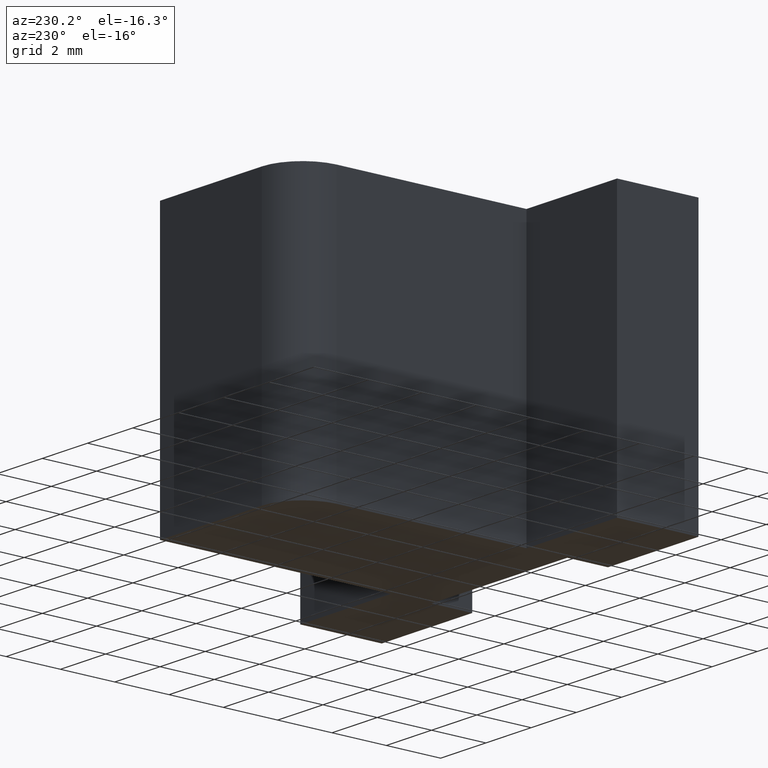
[diagram: clean part render]
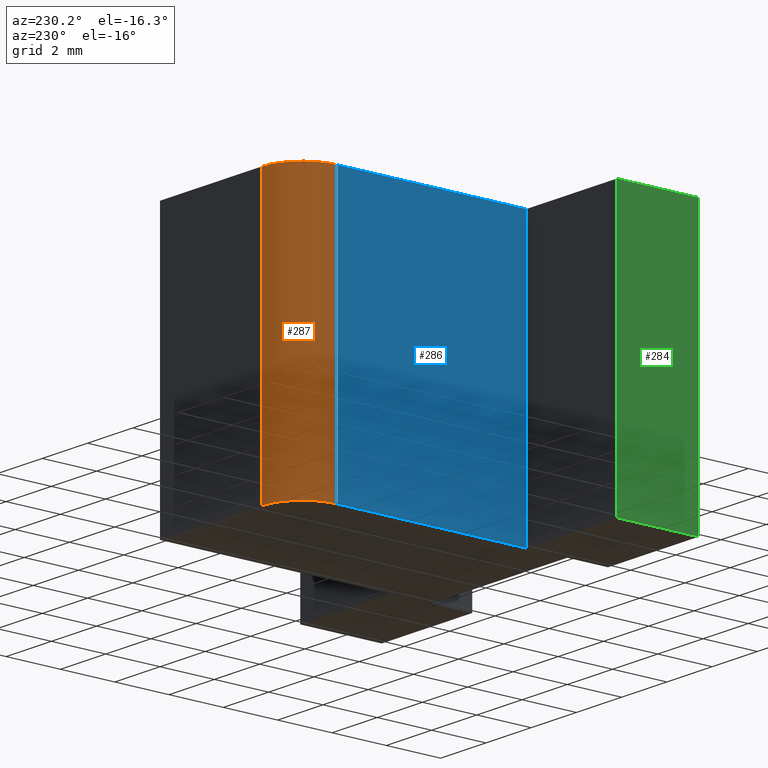
[diagram: same view with three faces highlighted in distinct colors, each labeled with its STEP entity id]
A machine part, auxiliary view with three faces highlighted in distinct colors.
Their STEP definitions:

[orange] entity #287 — the highlighted cylindrical surface (partial cylindrical patch) has radius 1.5 mm, axis along (0, 0, 1).
#15=CYLINDRICAL_SURFACE('',#323,1.5);
#24=FACE_OUTER_BOUND('',#39,.T.);
#39=EDGE_LOOP('',(#228,#229,#230,#231));
#46=CIRCLE('',#315,1.5);
#47=CIRCLE('',#324,1.5);
#74=LINE('',#461,#111);
#75=LINE('',#465,#112);
#111=VECTOR('',#377,10.);
#112=VECTOR('',#382,10.);
#131=VERTEX_POINT('',#423);
#132=VERTEX_POINT('',#425);
#142=VERTEX_POINT('',#459);
#143=VERTEX_POINT('',#463);
#157=EDGE_CURVE('',#132,#131,#46,.T.);
#175=EDGE_CURVE('',#142,#131,#74,.T.);
#176=EDGE_CURVE('',#142,#143,#47,.T.);
#177=EDGE_CURVE('',#143,#132,#75,.T.);
#228=ORIENTED_EDGE('',*,*,#176,.T.);
#229=ORIENTED_EDGE('',*,*,#177,.T.);
#230=ORIENTED_EDGE('',*,*,#157,.T.);
#231=ORIENTED_EDGE('',*,*,#175,.F.);
#287=ADVANCED_FACE('',(#24),#15,.T.);
#315=AXIS2_PLACEMENT_3D('',#426,#344,#345);
#323=AXIS2_PLACEMENT_3D('',#462,#378,#379);
#324=AXIS2_PLACEMENT_3D('',#464,#380,#381);
#344=DIRECTION('center_axis',(0.,0.,1.));
#345=DIRECTION('ref_axis',(-9.25185853854298E-16,-1.,0.));
#377=DIRECTION('',(0.,0.,-1.));
#378=DIRECTION('center_axis',(0.,0.,1.));
#379=DIRECTION('ref_axis',(-9.25185853854298E-16,-1.,0.));
#380=DIRECTION('center_axis',(0.,0.,-1.));
#381=DIRECTION('ref_axis',(-9.25185853854298E-16,-1.,0.));
#382=DIRECTION('',(0.,0.,-1.));
#423=CARTESIAN_POINT('',(-3.,10.,-5.));
#425=CARTESIAN_POINT('',(-1.5,11.5,-5.));
#426=CARTESIAN_POINT('Origin',(-1.5,10.,-5.));
#459=CARTESIAN_POINT('',(-3.,10.,5.));
#461=CARTESIAN_POINT('',(-3.,10.,0.));
#462=CARTESIAN_POINT('Origin',(-1.5,10.,0.));
#463=CARTESIAN_POINT('',(-1.5,11.5,5.));
#464=CARTESIAN_POINT('Origin',(-1.5,10.,5.));
#465=CARTESIAN_POINT('',(-1.5,11.5,0.));

[blue] entity #286 — the highlighted planar face has unit normal (-1, 0, 0).
#23=FACE_OUTER_BOUND('',#38,.T.);
#38=EDGE_LOOP('',(#224,#225,#226,#227));
#56=LINE('',#424,#93);
#72=LINE('',#457,#109);
#73=LINE('',#460,#110);
#74=LINE('',#461,#111);
#93=VECTOR('',#343,10.);
#109=VECTOR('',#373,10.);
#110=VECTOR('',#376,10.);
#111=VECTOR('',#377,10.);
#130=VERTEX_POINT('',#421);
#131=VERTEX_POINT('',#423);
#141=VERTEX_POINT('',#455);
#142=VERTEX_POINT('',#459);
#156=EDGE_CURVE('',#131,#130,#56,.T.);
#173=EDGE_CURVE('',#141,#130,#72,.T.);
#174=EDGE_CURVE('',#141,#142,#73,.T.);
#175=EDGE_CURVE('',#142,#131,#74,.T.);
#224=ORIENTED_EDGE('',*,*,#174,.T.);
#225=ORIENTED_EDGE('',*,*,#175,.T.);
#226=ORIENTED_EDGE('',*,*,#156,.T.);
#227=ORIENTED_EDGE('',*,*,#173,.F.);
#272=PLANE('',#322);
#286=ADVANCED_FACE('',(#23),#272,.T.);
#322=AXIS2_PLACEMENT_3D('',#458,#374,#375);
#343=DIRECTION('',(0.,-1.,0.));
#373=DIRECTION('',(0.,0.,-1.));
#374=DIRECTION('center_axis',(-1.,0.,0.));
#375=DIRECTION('ref_axis',(0.,0.,1.));
#376=DIRECTION('',(0.,1.,0.));
#377=DIRECTION('',(0.,0.,-1.));
#421=CARTESIAN_POINT('',(-3.,3.,-5.));
#423=CARTESIAN_POINT('',(-3.,10.,-5.));
#424=CARTESIAN_POINT('',(-3.,3.,-5.));
#455=CARTESIAN_POINT('',(-3.,3.,5.));
#457=CARTESIAN_POINT('',(-3.,3.,0.));
#458=CARTESIAN_POINT('Origin',(-3.,3.,0.));
#459=CARTESIAN_POINT('',(-3.,10.,5.));
#460=CARTESIAN_POINT('',(-3.,3.,5.));
#461=CARTESIAN_POINT('',(-3.,10.,0.));

[green] entity #284 — the highlighted planar face has unit normal (-1, 0, 0).
#21=FACE_OUTER_BOUND('',#36,.T.);
#36=EDGE_LOOP('',(#216,#217,#218,#219));
#54=LINE('',#420,#91);
#68=LINE('',#449,#105);
#69=LINE('',#452,#106);
#70=LINE('',#453,#107);
#91=VECTOR('',#341,10.);
#105=VECTOR('',#365,10.);
#106=VECTOR('',#368,10.);
#107=VECTOR('',#369,10.);
#128=VERTEX_POINT('',#417);
#129=VERTEX_POINT('',#419);
#139=VERTEX_POINT('',#447);
#140=VERTEX_POINT('',#451);
#154=EDGE_CURVE('',#129,#128,#54,.T.);
#169=EDGE_CURVE('',#139,#128,#68,.T.);
#170=EDGE_CURVE('',#139,#140,#69,.T.);
#171=EDGE_CURVE('',#140,#129,#70,.T.);
#216=ORIENTED_EDGE('',*,*,#170,.T.);
#217=ORIENTED_EDGE('',*,*,#171,.T.);
#218=ORIENTED_EDGE('',*,*,#154,.T.);
#219=ORIENTED_EDGE('',*,*,#169,.F.);
#270=PLANE('',#320);
#284=ADVANCED_FACE('',(#21),#270,.T.);
#320=AXIS2_PLACEMENT_3D('',#450,#366,#367);
#341=DIRECTION('',(0.,-1.,0.));
#365=DIRECTION('',(0.,0.,-1.));
#366=DIRECTION('center_axis',(-1.,0.,0.));
#367=DIRECTION('ref_axis',(0.,0.,1.));
#368=DIRECTION('',(0.,1.,0.));
#369=DIRECTION('',(0.,0.,-1.));
#417=CARTESIAN_POINT('',(-7.,0.,-5.));
#419=CARTESIAN_POINT('',(-7.,3.,-5.));
#420=CARTESIAN_POINT('',(-7.,0.,-5.));
#447=CARTESIAN_POINT('',(-7.,0.,5.));
#449=CARTESIAN_POINT('',(-7.,0.,0.));
#450=CARTESIAN_POINT('Origin',(-7.,0.,0.));
#451=CARTESIAN_POINT('',(-7.,3.,5.));
#452=CARTESIAN_POINT('',(-7.,0.,5.));
#453=CARTESIAN_POINT('',(-7.,3.,0.));